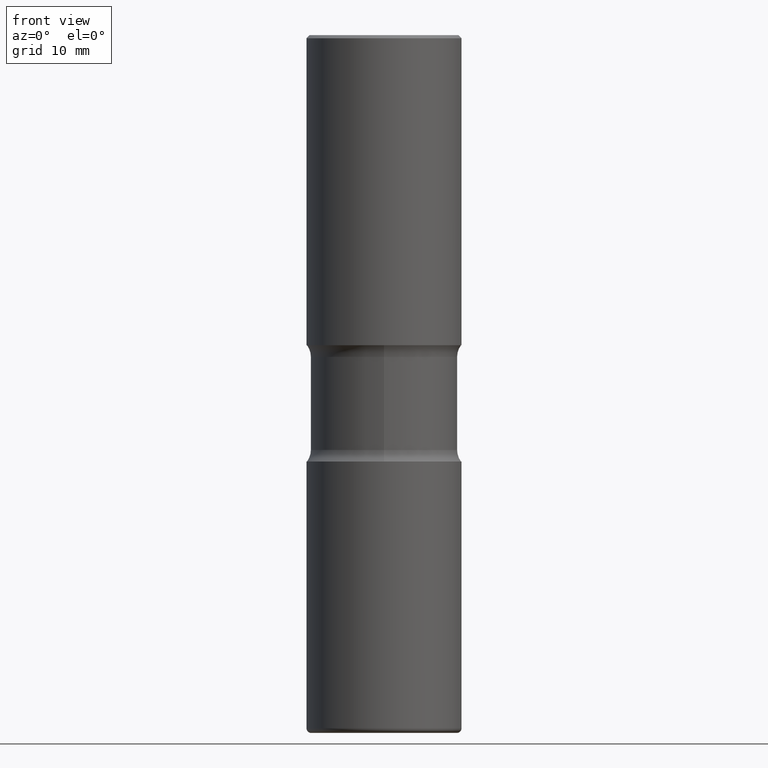
[diagram: clean part render]
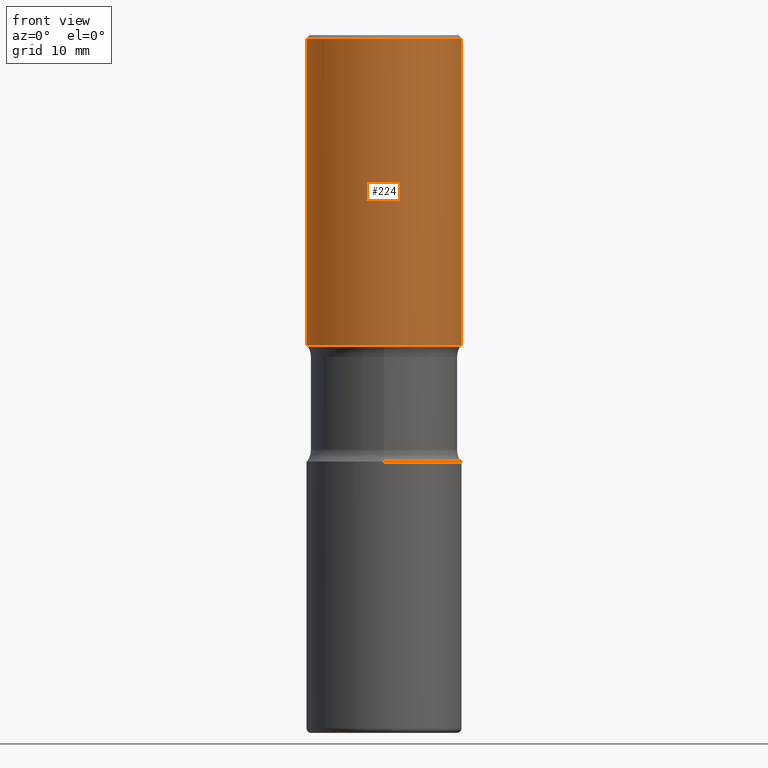
[diagram: same view with one face highlighted and labeled with its STEP entity id]
A machine part, front view. The second image highlights one B-rep face of the part: STEP entity #224.
In plain terms, the highlighted cylindrical surface (partial cylindrical patch) has radius 12.7 mm, axis along (-0, 0, 1).
Its self-contained STEP definition (entity closure, byte-faithful):
#18 = CIRCLE ( 'NONE', #26, 0.5000000000000002220 ) ;
#26 = AXIS2_PLACEMENT_3D ( 'NONE', #212, #261, #216 ) ;
#45 = CYLINDRICAL_SURFACE ( 'NONE', #402, 0.5000000000000004441 ) ;
#62 = CARTESIAN_POINT ( 'NONE',  ( -0.5000000000000004441, 3.552713678800504085E-15, -2.459467545127455133E-29 ) ) ;
#64 = DIRECTION ( 'NONE',  ( -2.445468806185136597E-29, 3.491481338843145583E-15, 1.000000000000000000 ) ) ;
#72 = ORIENTED_EDGE ( 'NONE', *, *, #338, .T. ) ;
#96 = EDGE_CURVE ( 'NONE', #167, #237, #18, .T. ) ;
#130 = DIRECTION ( 'NONE',  ( -2.445468806185136597E-29, 3.491481338843145583E-15, 1.000000000000000000 ) ) ;
#148 = EDGE_LOOP ( 'NONE', ( #506, #72, #289, #377 ) ) ;
#167 = VERTEX_POINT ( 'NONE', #474 ) ;
#190 = LINE ( 'NONE', #62, #305 ) ;
#212 = CARTESIAN_POINT ( 'NONE',  ( 4.890937612370289799E-31, -6.982962677686315028E-17, -0.02000000000000006981 ) ) ;
#216 = DIRECTION ( 'NONE',  ( 1.000000000000000000, -6.982962677686267499E-15, 0.000000000000000000 ) ) ;
#224 = ADVANCED_FACE ( 'NONE', ( #431 ), #45, .T. ) ;
#225 = VERTEX_POINT ( 'NONE', #299 ) ;
#226 = CARTESIAN_POINT ( 'NONE',  ( 0.5000000000000002220, -3.500078625662630657E-15, -0.02000000000000006981 ) ) ;
#237 = VERTEX_POINT ( 'NONE', #226 ) ;
#261 = DIRECTION ( 'NONE',  ( -2.445468806185136597E-29, 3.491481338843145583E-15, 1.000000000000000000 ) ) ;
#268 = EDGE_CURVE ( 'NONE', #292, #237, #274, .T. ) ;
#274 = LINE ( 'NONE', #442, #480 ) ;
#289 = ORIENTED_EDGE ( 'NONE', *, *, #268, .T. ) ;
#292 = VERTEX_POINT ( 'NONE', #319 ) ;
#299 = CARTESIAN_POINT ( 'NONE',  ( -0.5000000000000005551, 2.631752656892707803E-17, -2.000000000000000888 ) ) ;
#305 = VECTOR ( 'NONE', #488, 39.37007874015748143 ) ;
#319 = CARTESIAN_POINT ( 'NONE',  ( 0.5000000000000004441, -1.047444401652943162E-14, -2.000000000000000888 ) ) ;
#321 = DIRECTION ( 'NONE',  ( 1.000000000000000000, -6.982962677686266711E-15, 0.000000000000000000 ) ) ;
#338 = EDGE_CURVE ( 'NONE', #225, #292, #465, .T. ) ;
#343 = CARTESIAN_POINT ( 'NONE',  ( 0.000000000000000000, 0.000000000000000000, 0.000000000000000000 ) ) ;
#345 = DIRECTION ( 'NONE',  ( 1.000000000000000000, -6.982962677686266711E-15, 4.876176775795935232E-29 ) ) ;
#377 = ORIENTED_EDGE ( 'NONE', *, *, #96, .F. ) ;
#401 = DIRECTION ( 'NONE',  ( -2.445468806185136877E-29, 3.491481338843145188E-15, 1.000000000000000000 ) ) ;
#402 = AXIS2_PLACEMENT_3D ( 'NONE', #343, #130, #345 ) ;
#431 = FACE_OUTER_BOUND ( 'NONE', #148, .T. ) ;
#439 = AXIS2_PLACEMENT_3D ( 'NONE', #446, #64, #321 ) ;
#442 = CARTESIAN_POINT ( 'NONE',  ( 0.5000000000000004441, -3.491481338843136511E-15, 2.438088387897969858E-29 ) ) ;
#446 = CARTESIAN_POINT ( 'NONE',  ( 4.890937612370275996E-29, -6.982962677686295110E-15, -2.000000000000000888 ) ) ;
#465 = CIRCLE ( 'NONE', #439, 0.5000000000000004441 ) ;
#474 = CARTESIAN_POINT ( 'NONE',  ( -0.5000000000000002220, 3.421651712066272029E-15, -0.02000000000000006981 ) ) ;
#480 = VECTOR ( 'NONE', #401, 39.37007874015748143 ) ;
#488 = DIRECTION ( 'NONE',  ( -2.445468806185136877E-29, 3.491481338843145188E-15, 1.000000000000000000 ) ) ;
#506 = ORIENTED_EDGE ( 'NONE', *, *, #525, .F. ) ;
#525 = EDGE_CURVE ( 'NONE', #225, #167, #190, .T. ) ;